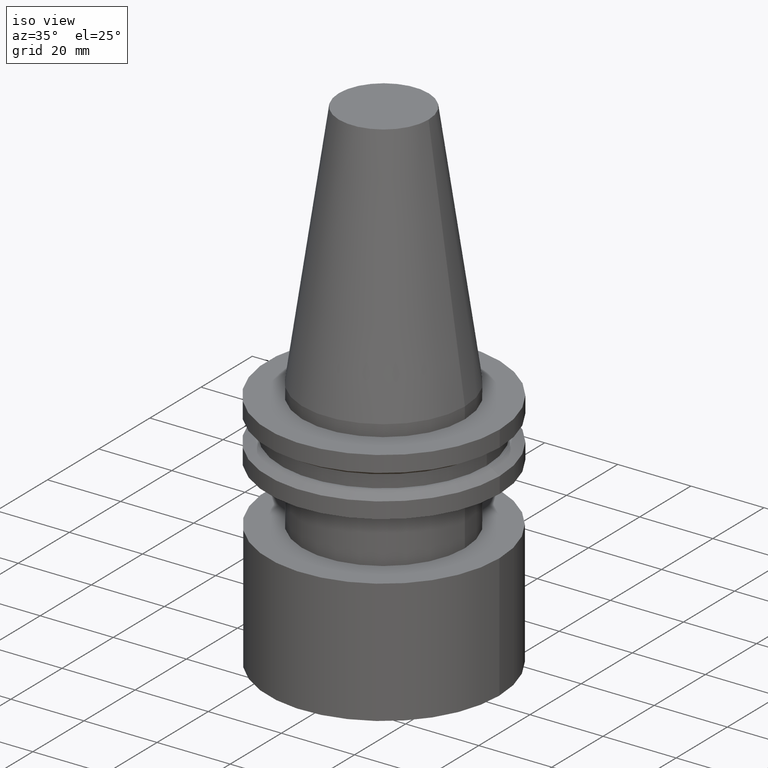
[diagram: clean part render]
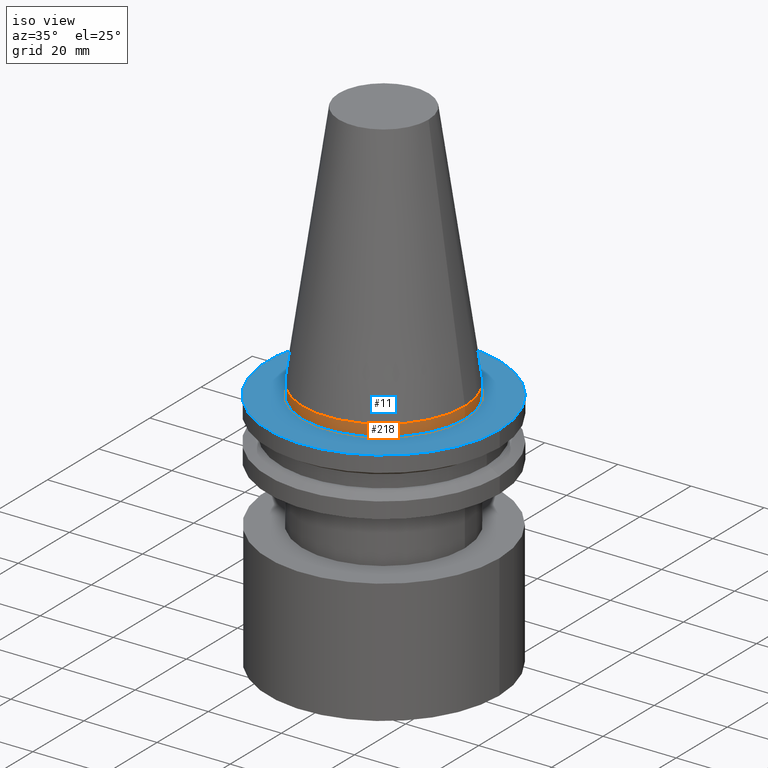
[diagram: same view with the hole feature highlighted: cylindrical wall and planar end face, labeled with their STEP entity ids]
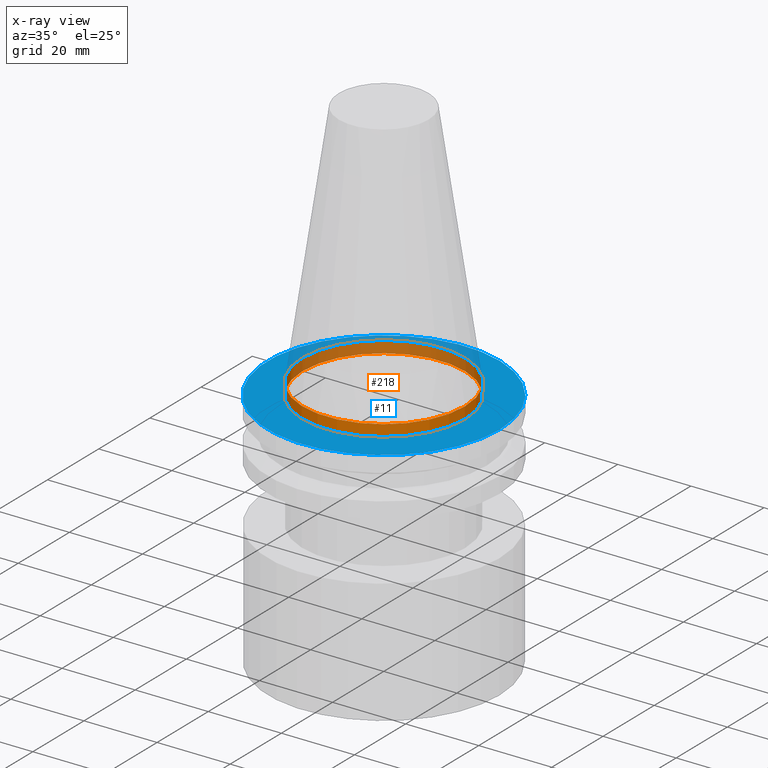
[diagram: x-ray of the same camera — body ghosted, the hole faces saturated]
A machine part, iso view. The highlighted faces form one hole feature of diameter 44.45 mm: the cylindrical wall (entity #218, orange) and its adjacent planar end face (entity #11, blue) — they share a circular edge in the B-rep.
The next image is the same camera in x-ray (body ghosted, the hole faces saturated) — the bore reads through the body.
Wall:
#8 = CARTESIAN_POINT ( 'NONE',  ( 22.22500000000000142, 0.000000000000000000, -3.174999999999997158 ) ) ;
#42 = CIRCLE ( 'NONE', #334, 22.22500000000000142 ) ;
#85 = ORIENTED_EDGE ( 'NONE', *, *, #228, .F. ) ;
#120 = CARTESIAN_POINT ( 'NONE',  ( 0.000000000000000000, 0.000000000000000000, 68.25000000000000000 ) ) ;
#127 = EDGE_LOOP ( 'NONE', ( #209 ) ) ;
#141 = AXIS2_PLACEMENT_3D ( 'NONE', #155, #243, #280 ) ;
#155 = CARTESIAN_POINT ( 'NONE',  ( 0.000000000000000000, 0.000000000000000000, -3.174999999999997158 ) ) ;
#159 = EDGE_LOOP ( 'NONE', ( #85 ) ) ;
#192 = CIRCLE ( 'NONE', #141, 22.22500000000000142 ) ;
#209 = ORIENTED_EDGE ( 'NONE', *, *, #302, .T. ) ;
#218 = ADVANCED_FACE ( 'NONE', ( #239, #270 ), #365, .T. ) ;
#223 = VERTEX_POINT ( 'NONE', #8 ) ;
#226 = CARTESIAN_POINT ( 'NONE',  ( 22.22500000000000142, 0.000000000000000000, 0.000000000000000000 ) ) ;
#228 = EDGE_CURVE ( 'NONE', #391, #391, #42, .T. ) ;
#239 = FACE_OUTER_BOUND ( 'NONE', #159, .T. ) ;
#240 = DIRECTION ( 'NONE',  ( -0.000000000000000000, -0.000000000000000000, 1.000000000000000000 ) ) ;
#243 = DIRECTION ( 'NONE',  ( -0.000000000000000000, -0.000000000000000000, 1.000000000000000000 ) ) ;
#270 = FACE_OUTER_BOUND ( 'NONE', #127, .T. ) ;
#280 = DIRECTION ( 'NONE',  ( 1.000000000000000000, 0.000000000000000000, 0.000000000000000000 ) ) ;
#302 = EDGE_CURVE ( 'NONE', #223, #223, #192, .T. ) ;
#333 = DIRECTION ( 'NONE',  ( 1.000000000000000000, 0.000000000000000000, 0.000000000000000000 ) ) ;
#334 = AXIS2_PLACEMENT_3D ( 'NONE', #368, #400, #333 ) ;
#351 = AXIS2_PLACEMENT_3D ( 'NONE', #120, #240, #390 ) ;
#365 = CYLINDRICAL_SURFACE ( 'NONE', #351, 22.22500000000000142 ) ;
#368 = CARTESIAN_POINT ( 'NONE',  ( 0.000000000000000000, 0.000000000000000000, 0.000000000000000000 ) ) ;
#390 = DIRECTION ( 'NONE',  ( 1.000000000000000000, 0.000000000000000000, 0.000000000000000000 ) ) ;
#391 = VERTEX_POINT ( 'NONE', #226 ) ;
#400 = DIRECTION ( 'NONE',  ( -0.000000000000000000, -0.000000000000000000, 1.000000000000000000 ) ) ;
End face:
#8 = CARTESIAN_POINT ( 'NONE',  ( 22.22500000000000142, 0.000000000000000000, -3.174999999999997158 ) ) ;
#11 = ADVANCED_FACE ( 'NONE', ( #67, #194 ), #246, .F. ) ;
#12 = EDGE_LOOP ( 'NONE', ( #397 ) ) ;
#27 = CARTESIAN_POINT ( 'NONE',  ( 31.75000000000000000, 0.000000000000000000, -3.174999999999997158 ) ) ;
#40 = EDGE_CURVE ( 'NONE', #212, #212, #203, .T. ) ;
#58 = AXIS2_PLACEMENT_3D ( 'NONE', #289, #388, #107 ) ;
#67 = FACE_BOUND ( 'NONE', #12, .T. ) ;
#105 = DIRECTION ( 'NONE',  ( -1.000000000000000000, 0.000000000000000000, -0.000000000000000000 ) ) ;
#107 = DIRECTION ( 'NONE',  ( 1.000000000000000000, 0.000000000000000000, 0.000000000000000000 ) ) ;
#141 = AXIS2_PLACEMENT_3D ( 'NONE', #155, #243, #280 ) ;
#152 = ORIENTED_EDGE ( 'NONE', *, *, #40, .T. ) ;
#155 = CARTESIAN_POINT ( 'NONE',  ( 0.000000000000000000, 0.000000000000000000, -3.174999999999997158 ) ) ;
#180 = EDGE_LOOP ( 'NONE', ( #152 ) ) ;
#192 = CIRCLE ( 'NONE', #141, 22.22500000000000142 ) ;
#194 = FACE_OUTER_BOUND ( 'NONE', #180, .T. ) ;
#203 = CIRCLE ( 'NONE', #58, 31.75000000000000000 ) ;
#212 = VERTEX_POINT ( 'NONE', #27 ) ;
#223 = VERTEX_POINT ( 'NONE', #8 ) ;
#243 = DIRECTION ( 'NONE',  ( -0.000000000000000000, -0.000000000000000000, 1.000000000000000000 ) ) ;
#246 = PLANE ( 'NONE',  #268 ) ;
#268 = AXIS2_PLACEMENT_3D ( 'NONE', #382, #385, #105 ) ;
#280 = DIRECTION ( 'NONE',  ( 1.000000000000000000, 0.000000000000000000, 0.000000000000000000 ) ) ;
#289 = CARTESIAN_POINT ( 'NONE',  ( 0.000000000000000000, 0.000000000000000000, -3.174999999999997158 ) ) ;
#302 = EDGE_CURVE ( 'NONE', #223, #223, #192, .T. ) ;
#382 = CARTESIAN_POINT ( 'NONE',  ( 0.000000000000000000, 31.75000000000000000, -3.174999999999993605 ) ) ;
#385 = DIRECTION ( 'NONE',  ( 0.000000000000000000, 0.000000000000000000, -1.000000000000000000 ) ) ;
#388 = DIRECTION ( 'NONE',  ( -0.000000000000000000, -0.000000000000000000, 1.000000000000000000 ) ) ;
#397 = ORIENTED_EDGE ( 'NONE', *, *, #302, .F. ) ;